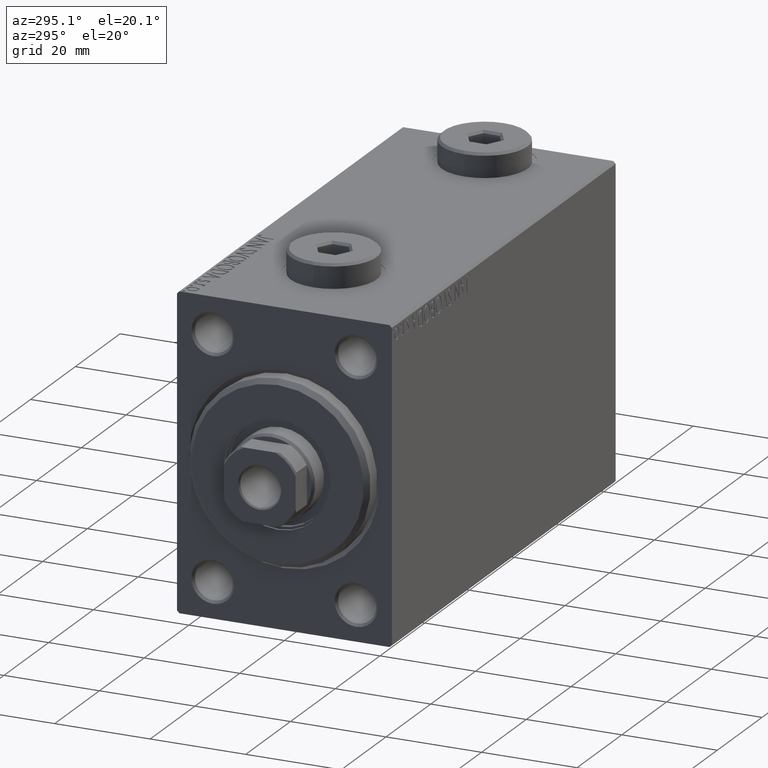
[diagram: clean part render]
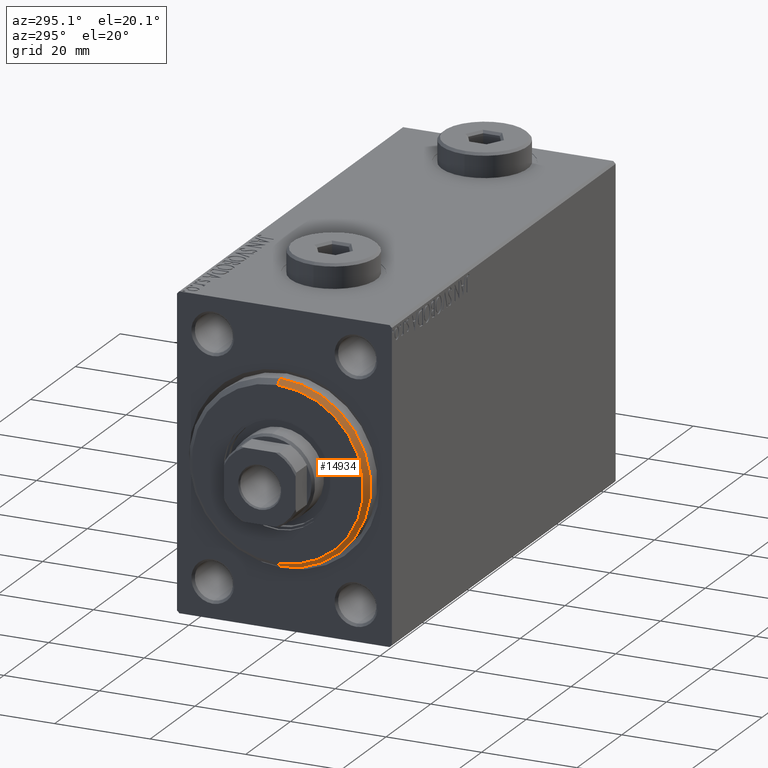
[diagram: same view with one face highlighted and labeled with its STEP entity id]
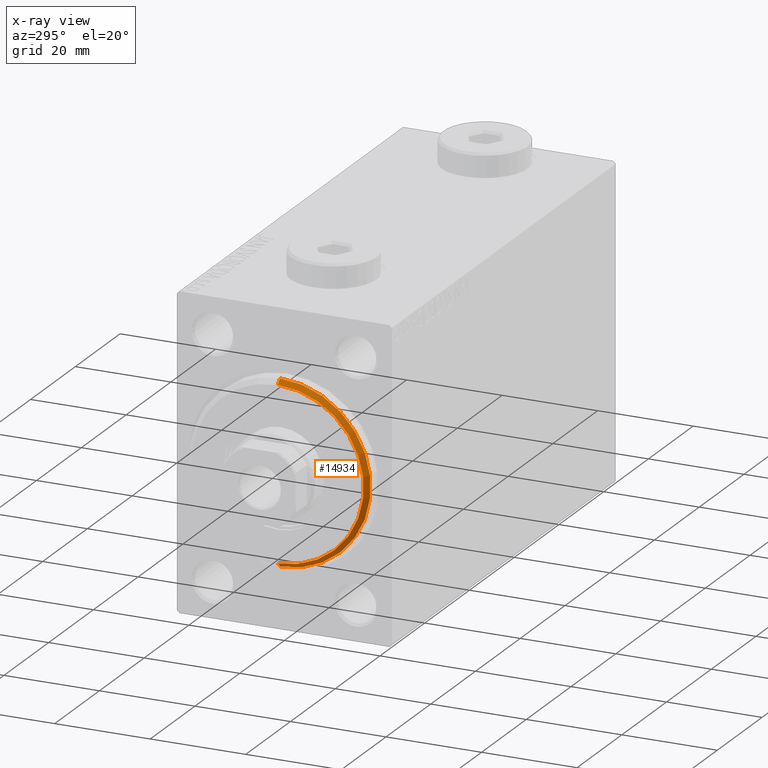
[diagram: x-ray of the same camera — body ghosted, the highlighted face saturated]
A machine part, auxiliary view. The second image highlights one B-rep face of the part: STEP entity #14934.
The next image is the same camera in x-ray: the body ghosted, the highlighted face saturated — about 0% of this face is hidden behind the body in this view.
In plain terms, the highlighted conical surface has half-angle 45 deg.
Its self-contained STEP definition (entity closure, byte-faithful):
#360 = EDGE_CURVE ( 'NONE', #18048, #29847, #41660, .T. ) ;
#6404 = ORIENTED_EDGE ( 'NONE', *, *, #42390, .T. ) ;
#7031 = AXIS2_PLACEMENT_3D ( 'NONE', #38819, #7261, #35342 ) ;
#7261 = DIRECTION ( 'NONE',  ( -1.000000000000000000, 0.000000000000000000, 0.000000000000000000 ) ) ;
#9211 = AXIS2_PLACEMENT_3D ( 'NONE', #33549, #44399, #16288 ) ;
#10023 = FACE_OUTER_BOUND ( 'NONE', #43330, .T. ) ;
#10730 = CONICAL_SURFACE ( 'NONE', #7031, 17.99999999999999645, 0.7853981633974466137 ) ;
#10772 = LINE ( 'NONE', #24801, #32662 ) ;
#11651 = VERTEX_POINT ( 'NONE', #27761 ) ;
#12345 = EDGE_CURVE ( 'NONE', #29686, #11651, #42400, .T. ) ;
#14934 = ADVANCED_FACE ( 'NONE', ( #10023 ), #10730, .T. ) ;
#16288 = DIRECTION ( 'NONE',  ( 0.000000000000000000, 0.000000000000000000, -1.000000000000000000 ) ) ;
#18048 = VERTEX_POINT ( 'NONE', #21302 ) ;
#18062 = ORIENTED_EDGE ( 'NONE', *, *, #12345, .F. ) ;
#18243 = DIRECTION ( 'NONE',  ( 0.000000000000000000, 0.000000000000000000, -1.000000000000000000 ) ) ;
#18844 = AXIS2_PLACEMENT_3D ( 'NONE', #38518, #28145, #18243 ) ;
#18854 = ORIENTED_EDGE ( 'NONE', *, *, #360, .F. ) ;
#19488 = CARTESIAN_POINT ( 'NONE',  ( 1.999999999999992228, 2.326828918379970970E-15, -19.00000000000000000 ) ) ;
#21132 = ORIENTED_EDGE ( 'NONE', *, *, #23898, .F. ) ;
#21302 = CARTESIAN_POINT ( 'NONE',  ( 1.999999999999992228, 0.000000000000000000, 19.00000000000000000 ) ) ;
#21577 = CARTESIAN_POINT ( 'NONE',  ( 3.000000000000000000, 2.265596578422603002E-15, -17.99999999999999645 ) ) ;
#23898 = EDGE_CURVE ( 'NONE', #11651, #18048, #38131, .T. ) ;
#24801 = CARTESIAN_POINT ( 'NONE',  ( 3.000000000000000000, 2.204364238465235033E-15, -17.99999999999999645 ) ) ;
#26838 = CARTESIAN_POINT ( 'NONE',  ( 3.000000000000000000, 0.000000000000000000, 17.99999999999999645 ) ) ;
#27761 = CARTESIAN_POINT ( 'NONE',  ( 3.000000000000000000, 0.000000000000000000, 17.99999999999999645 ) ) ;
#28145 = DIRECTION ( 'NONE',  ( -1.000000000000000000, 0.000000000000000000, 0.000000000000000000 ) ) ;
#29686 = VERTEX_POINT ( 'NONE', #21577 ) ;
#29847 = VERTEX_POINT ( 'NONE', #19488 ) ;
#30820 = VECTOR ( 'NONE', #37221, 1000.000000000000000 ) ;
#32662 = VECTOR ( 'NONE', #35618, 1000.000000000000000 ) ;
#33549 = CARTESIAN_POINT ( 'NONE',  ( 3.000000000000000000, 0.000000000000000000, 0.000000000000000000 ) ) ;
#35342 = DIRECTION ( 'NONE',  ( 0.000000000000000000, 0.000000000000000000, 1.000000000000000000 ) ) ;
#35618 = DIRECTION ( 'NONE',  ( -0.7071067811865487940, 8.659560562354918067E-17, -0.7071067811865463515 ) ) ;
#37221 = DIRECTION ( 'NONE',  ( -0.7071067811865487940, 0.000000000000000000, 0.7071067811865463515 ) ) ;
#38131 = LINE ( 'NONE', #26838, #30820 ) ;
#38518 = CARTESIAN_POINT ( 'NONE',  ( 1.999999999999992228, 0.000000000000000000, 0.000000000000000000 ) ) ;
#38819 = CARTESIAN_POINT ( 'NONE',  ( 3.000000000000000000, 0.000000000000000000, 0.000000000000000000 ) ) ;
#41660 = CIRCLE ( 'NONE', #18844, 19.00000000000000000 ) ;
#42390 = EDGE_CURVE ( 'NONE', #29686, #29847, #10772, .T. ) ;
#42400 = CIRCLE ( 'NONE', #9211, 17.99999999999999645 ) ;
#43330 = EDGE_LOOP ( 'NONE', ( #18062, #6404, #18854, #21132 ) ) ;
#44399 = DIRECTION ( 'NONE',  ( 1.000000000000000000, -0.000000000000000000, 0.000000000000000000 ) ) ;